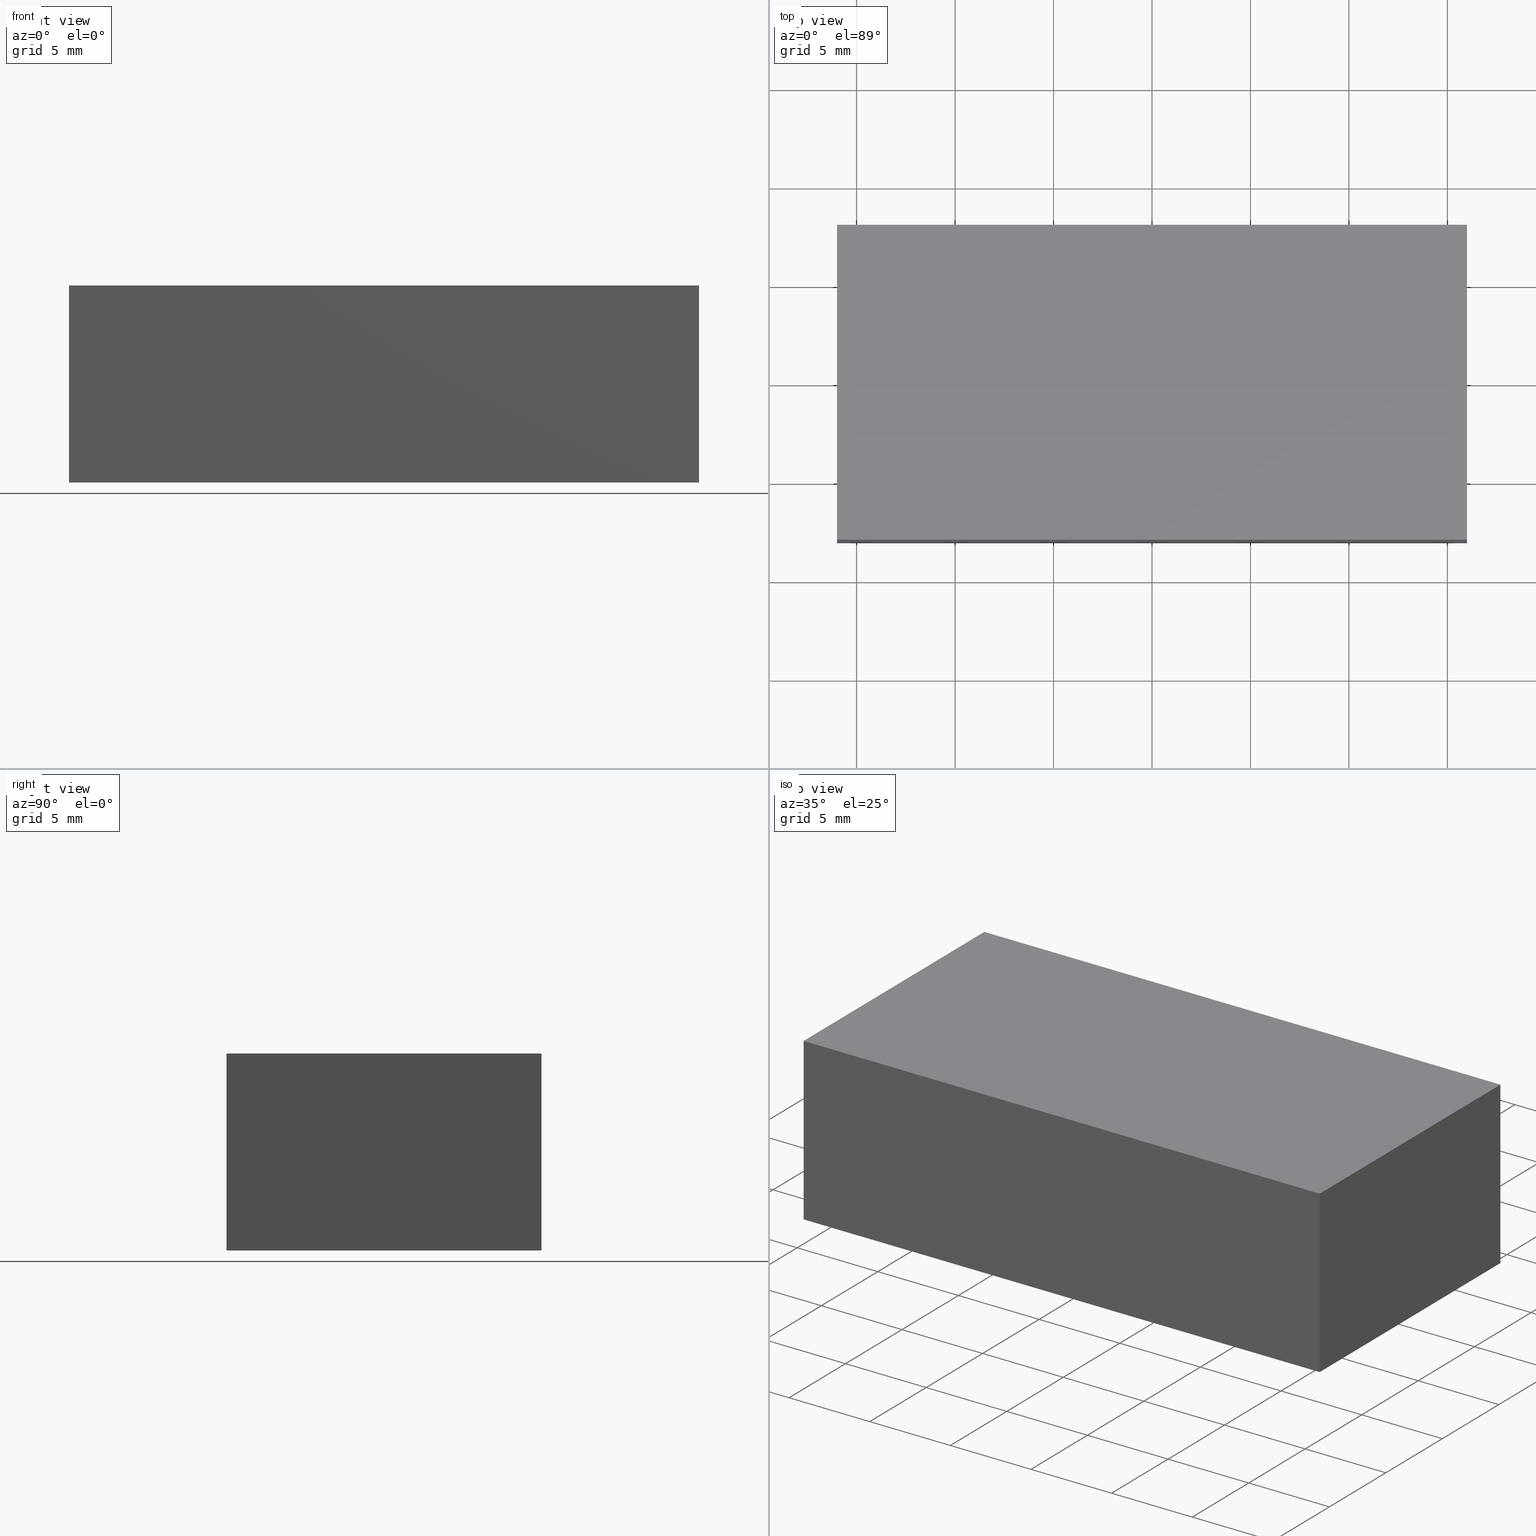
[diagram: canonical four-view strip — front | top / right | iso, engineering-drawing reading convention]
A machine part, canonical four-view strip (front | top / right | iso — engineering-drawing reading convention). The complete STEP part file that produces these views, byte-faithful:
ISO-10303-21;
HEADER;
/* Generated by software containing ST-Developer
 * from STEP Tools, Inc. (www.steptools.com) 
 */

FILE_DESCRIPTION(
/* description */ (''),
/* implementation_level */ '2;1');

FILE_NAME(
/* name */ 
'H:\\Eigene Dateien\\CAD Workspace Vault\\CAD\\E_3_Nocken\\E_3_01_Aufs
chwei\X\DFnocke\\02_Rechteck\\E_3_01_02_00_00_WKZ-0144.stp',
/* time_stamp */ '2024-05-16T12:51:06+02:00',
/* author */ ('dfischer'),
/* organization */ (''),
/* preprocessor_version */ 'ST-DEVELOPER v18.1',
/* originating_system */ 'Autodesk Inventor 2021',
/* authorisation */ '');

FILE_SCHEMA (('AUTOMOTIVE_DESIGN { 1 0 10303 214 3 1 1 }'));
ENDSEC;

DATA;
#10=MECHANICAL_DESIGN_GEOMETRIC_PRESENTATION_REPRESENTATION('',(#14,#15),
#190);
#11=SHAPE_REPRESENTATION_RELATIONSHIP('SRR','None',#197,#12);
#12=ADVANCED_BREP_SHAPE_REPRESENTATION('',(#13),#189);
#13=MANIFOLD_SOLID_BREP('Volumenk\X\F6rper1',#108);
#14=STYLED_ITEM('',(#207),#106);
#15=STYLED_ITEM('',(#206),#13);
#16=FACE_OUTER_BOUND('',#22,.T.);
#17=FACE_OUTER_BOUND('',#23,.T.);
#18=FACE_OUTER_BOUND('',#24,.T.);
#19=FACE_OUTER_BOUND('',#25,.T.);
#20=FACE_OUTER_BOUND('',#26,.T.);
#21=FACE_OUTER_BOUND('',#27,.T.);
#22=EDGE_LOOP('',(#72,#73,#74,#75));
#23=EDGE_LOOP('',(#76,#77,#78,#79));
#24=EDGE_LOOP('',(#80,#81,#82,#83));
#25=EDGE_LOOP('',(#84,#85,#86,#87));
#26=EDGE_LOOP('',(#88,#89,#90,#91));
#27=EDGE_LOOP('',(#92,#93,#94,#95));
#28=LINE('',#164,#40);
#29=LINE('',#166,#41);
#30=LINE('',#168,#42);
#31=LINE('',#169,#43);
#32=LINE('',#173,#44);
#33=LINE('',#174,#45);
#34=LINE('',#175,#46);
#35=LINE('',#178,#47);
#36=LINE('',#179,#48);
#37=LINE('',#182,#49);
#38=LINE('',#183,#50);
#39=LINE('',#185,#51);
#40=VECTOR('',#138,10.);
#41=VECTOR('',#139,10.);
#42=VECTOR('',#140,10.);
#43=VECTOR('',#141,10.);
#44=VECTOR('',#144,10.);
#45=VECTOR('',#145,10.);
#46=VECTOR('',#146,10.);
#47=VECTOR('',#149,10.);
#48=VECTOR('',#150,10.);
#49=VECTOR('',#153,10.);
#50=VECTOR('',#154,10.);
#51=VECTOR('',#157,10.);
#52=VERTEX_POINT('',#162);
#53=VERTEX_POINT('',#163);
#54=VERTEX_POINT('',#165);
#55=VERTEX_POINT('',#167);
#56=VERTEX_POINT('',#171);
#57=VERTEX_POINT('',#172);
#58=VERTEX_POINT('',#177);
#59=VERTEX_POINT('',#181);
#60=EDGE_CURVE('',#52,#53,#28,.T.);
#61=EDGE_CURVE('',#54,#52,#29,.T.);
#62=EDGE_CURVE('',#55,#54,#30,.T.);
#63=EDGE_CURVE('',#53,#55,#31,.T.);
#64=EDGE_CURVE('',#56,#57,#32,.T.);
#65=EDGE_CURVE('',#55,#57,#33,.T.);
#66=EDGE_CURVE('',#56,#54,#34,.T.);
#67=EDGE_CURVE('',#57,#58,#35,.T.);
#68=EDGE_CURVE('',#53,#58,#36,.T.);
#69=EDGE_CURVE('',#58,#59,#37,.T.);
#70=EDGE_CURVE('',#52,#59,#38,.T.);
#71=EDGE_CURVE('',#59,#56,#39,.T.);
#72=ORIENTED_EDGE('',*,*,#60,.F.);
#73=ORIENTED_EDGE('',*,*,#61,.F.);
#74=ORIENTED_EDGE('',*,*,#62,.F.);
#75=ORIENTED_EDGE('',*,*,#63,.F.);
#76=ORIENTED_EDGE('',*,*,#64,.T.);
#77=ORIENTED_EDGE('',*,*,#65,.F.);
#78=ORIENTED_EDGE('',*,*,#62,.T.);
#79=ORIENTED_EDGE('',*,*,#66,.F.);
#80=ORIENTED_EDGE('',*,*,#67,.T.);
#81=ORIENTED_EDGE('',*,*,#68,.F.);
#82=ORIENTED_EDGE('',*,*,#63,.T.);
#83=ORIENTED_EDGE('',*,*,#65,.T.);
#84=ORIENTED_EDGE('',*,*,#69,.T.);
#85=ORIENTED_EDGE('',*,*,#70,.F.);
#86=ORIENTED_EDGE('',*,*,#60,.T.);
#87=ORIENTED_EDGE('',*,*,#68,.T.);
#88=ORIENTED_EDGE('',*,*,#71,.T.);
#89=ORIENTED_EDGE('',*,*,#66,.T.);
#90=ORIENTED_EDGE('',*,*,#61,.T.);
#91=ORIENTED_EDGE('',*,*,#70,.T.);
#92=ORIENTED_EDGE('',*,*,#64,.F.);
#93=ORIENTED_EDGE('',*,*,#71,.F.);
#94=ORIENTED_EDGE('',*,*,#69,.F.);
#95=ORIENTED_EDGE('',*,*,#67,.F.);
#96=PLANE('',#128);
#97=PLANE('',#129);
#98=PLANE('',#130);
#99=PLANE('',#131);
#100=PLANE('',#132);
#101=PLANE('',#133);
#102=ADVANCED_FACE('',(#16),#96,.F.);
#103=ADVANCED_FACE('',(#17),#97,.T.);
#104=ADVANCED_FACE('',(#18),#98,.T.);
#105=ADVANCED_FACE('',(#19),#99,.T.);
#106=ADVANCED_FACE('',(#20),#100,.T.);
#107=ADVANCED_FACE('',(#21),#101,.T.);
#108=CLOSED_SHELL('',(#102,#103,#104,#105,#106,#107));
#109=DERIVED_UNIT_ELEMENT(#111,1.);
#110=DERIVED_UNIT_ELEMENT(#192,3.);
#111=(
MASS_UNIT()
NAMED_UNIT(*)
SI_UNIT($,.GRAM.)
);
#112=DERIVED_UNIT((#109,#110));
#113=MEASURE_REPRESENTATION_ITEM('density measure',
POSITIVE_RATIO_MEASURE(8.03),#112);
#114=PROPERTY_DEFINITION_REPRESENTATION(#119,#116);
#115=PROPERTY_DEFINITION_REPRESENTATION(#120,#117);
#116=REPRESENTATION('material name',(#118),#189);
#117=REPRESENTATION('density',(#113),#189);
#118=DESCRIPTIVE_REPRESENTATION_ITEM('1.4301','1.4301');
#119=PROPERTY_DEFINITION('material property','material name',#199);
#120=PROPERTY_DEFINITION('material property','density of part',#199);
#121=DATE_TIME_ROLE('creation_date');
#122=APPLIED_DATE_AND_TIME_ASSIGNMENT(#123,#121,(#199));
#123=DATE_AND_TIME(#124,#125);
#124=CALENDAR_DATE(2011,18,10);
#125=LOCAL_TIME(0,0,0.,#126);
#126=COORDINATED_UNIVERSAL_TIME_OFFSET(0,0,.BEHIND.);
#127=AXIS2_PLACEMENT_3D('placement',#160,#134,#135);
#128=AXIS2_PLACEMENT_3D('',#161,#136,#137);
#129=AXIS2_PLACEMENT_3D('',#170,#142,#143);
#130=AXIS2_PLACEMENT_3D('',#176,#147,#148);
#131=AXIS2_PLACEMENT_3D('',#180,#151,#152);
#132=AXIS2_PLACEMENT_3D('',#184,#155,#156);
#133=AXIS2_PLACEMENT_3D('',#186,#158,#159);
#134=DIRECTION('axis',(0.,0.,1.));
#135=DIRECTION('refdir',(1.,0.,0.));
#136=DIRECTION('center_axis',(0.,0.,1.));
#137=DIRECTION('ref_axis',(1.,0.,0.));
#138=DIRECTION('',(-2.77555756156289E-16,1.,0.));
#139=DIRECTION('',(1.,0.,0.));
#140=DIRECTION('',(0.,-1.,0.));
#141=DIRECTION('',(-1.,-2.08166817117217E-16,0.));
#142=DIRECTION('center_axis',(-1.,0.,0.));
#143=DIRECTION('ref_axis',(0.,0.,1.));
#144=DIRECTION('',(0.,1.,0.));
#145=DIRECTION('',(0.,0.,1.));
#146=DIRECTION('',(0.,0.,-1.));
#147=DIRECTION('center_axis',(-2.08166817117217E-16,1.,0.));
#148=DIRECTION('ref_axis',(0.,0.,1.));
#149=DIRECTION('',(1.,2.08166817117217E-16,0.));
#150=DIRECTION('',(0.,0.,1.));
#151=DIRECTION('center_axis',(1.,2.77555756156289E-16,0.));
#152=DIRECTION('ref_axis',(0.,0.,-1.));
#153=DIRECTION('',(2.77555756156289E-16,-1.,0.));
#154=DIRECTION('',(0.,0.,1.));
#155=DIRECTION('center_axis',(0.,-1.,0.));
#156=DIRECTION('ref_axis',(0.,0.,-1.));
#157=DIRECTION('',(-1.,0.,0.));
#158=DIRECTION('center_axis',(0.,0.,1.));
#159=DIRECTION('ref_axis',(1.,0.,0.));
#160=CARTESIAN_POINT('',(0.,0.,0.));
#161=CARTESIAN_POINT('Origin',(0.,2.30455385414616E-15,-5.));
#162=CARTESIAN_POINT('',(16.,-8.,-5.));
#163=CARTESIAN_POINT('',(16.,8.00000000000001,-5.));
#164=CARTESIAN_POINT('',(16.,-8.,-5.));
#165=CARTESIAN_POINT('',(-16.,-8.,-5.));
#166=CARTESIAN_POINT('',(-16.,-8.,-5.));
#167=CARTESIAN_POINT('',(-16.,8.,-5.));
#168=CARTESIAN_POINT('',(-16.,8.,-5.));
#169=CARTESIAN_POINT('',(16.,8.00000000000001,-5.));
#170=CARTESIAN_POINT('Origin',(-16.,-8.,0.));
#171=CARTESIAN_POINT('',(-16.,-8.,5.));
#172=CARTESIAN_POINT('',(-16.,8.,5.));
#173=CARTESIAN_POINT('',(-16.,8.,5.));
#174=CARTESIAN_POINT('',(-16.,8.,0.));
#175=CARTESIAN_POINT('',(-16.,-8.,0.));
#176=CARTESIAN_POINT('Origin',(-16.,8.,0.));
#177=CARTESIAN_POINT('',(16.,8.00000000000001,5.));
#178=CARTESIAN_POINT('',(16.,8.00000000000001,5.));
#179=CARTESIAN_POINT('',(16.,8.00000000000001,0.));
#180=CARTESIAN_POINT('Origin',(16.,8.00000000000001,0.));
#181=CARTESIAN_POINT('',(16.,-8.,5.));
#182=CARTESIAN_POINT('',(16.,-8.,5.));
#183=CARTESIAN_POINT('',(16.,-8.,0.));
#184=CARTESIAN_POINT('Origin',(16.,-8.,0.));
#185=CARTESIAN_POINT('',(-16.,-8.,5.));
#186=CARTESIAN_POINT('Origin',(0.,2.25408917120865E-15,5.));
#187=UNCERTAINTY_MEASURE_WITH_UNIT(LENGTH_MEASURE(0.01),#191,
'DISTANCE_ACCURACY_VALUE',
'Maximum model space distance between geometric entities at asserted c
onnectivities');
#188=UNCERTAINTY_MEASURE_WITH_UNIT(LENGTH_MEASURE(0.01),#191,
'DISTANCE_ACCURACY_VALUE',
'Maximum model space distance between geometric entities at asserted c
onnectivities');
#189=(
GEOMETRIC_REPRESENTATION_CONTEXT(3)
GLOBAL_UNCERTAINTY_ASSIGNED_CONTEXT((#187))
GLOBAL_UNIT_ASSIGNED_CONTEXT((#191,#193,#194))
REPRESENTATION_CONTEXT('','3D')
);
#190=(
GEOMETRIC_REPRESENTATION_CONTEXT(3)
GLOBAL_UNCERTAINTY_ASSIGNED_CONTEXT((#188))
GLOBAL_UNIT_ASSIGNED_CONTEXT((#191,#193,#194))
REPRESENTATION_CONTEXT('','3D')
);
#191=(
LENGTH_UNIT()
NAMED_UNIT(*)
SI_UNIT(.MILLI.,.METRE.)
);
#192=(
LENGTH_UNIT()
NAMED_UNIT(*)
SI_UNIT(.CENTI.,.METRE.)
);
#193=(
NAMED_UNIT(*)
PLANE_ANGLE_UNIT()
SI_UNIT($,.RADIAN.)
);
#194=(
NAMED_UNIT(*)
SI_UNIT($,.STERADIAN.)
SOLID_ANGLE_UNIT()
);
#195=SHAPE_DEFINITION_REPRESENTATION(#196,#197);
#196=PRODUCT_DEFINITION_SHAPE('',$,#199);
#197=SHAPE_REPRESENTATION('',(#127),#189);
#198=PRODUCT_DEFINITION_CONTEXT('part definition',#203,'design');
#199=PRODUCT_DEFINITION('WKZ-0144','E_3_01_02_00_00_WKZ-0144',#200,#198);
#200=PRODUCT_DEFINITION_FORMATION('',$,#205);
#201=PRODUCT_RELATED_PRODUCT_CATEGORY('E_3_01_02_00_00_WKZ-0144',
'E_3_01_02_00_00_WKZ-0144',(#205));
#202=APPLICATION_PROTOCOL_DEFINITION('international standard',
'automotive_design',2009,#203);
#203=APPLICATION_CONTEXT(
'Core Data for Automotive Mechanical Design Process');
#204=PRODUCT_CONTEXT('part definition',#203,'mechanical');
#205=PRODUCT('WKZ-0144','E_3_01_02_00_00_WKZ-0144',$,(#204));
#206=PRESENTATION_STYLE_ASSIGNMENT((#208));
#207=PRESENTATION_STYLE_ASSIGNMENT((#209));
#208=SURFACE_STYLE_USAGE(.BOTH.,#212);
#209=SURFACE_STYLE_USAGE(.BOTH.,#213);
#210=SURFACE_STYLE_RENDERING_WITH_PROPERTIES($,#220,(#211));
#211=SURFACE_STYLE_TRANSPARENT(0.);
#212=SURFACE_SIDE_STYLE('',(#214,#210));
#213=SURFACE_SIDE_STYLE('',(#215));
#214=SURFACE_STYLE_FILL_AREA(#216);
#215=SURFACE_STYLE_FILL_AREA(#217);
#216=FILL_AREA_STYLE('',(#218));
#217=FILL_AREA_STYLE('',(#219));
#218=FILL_AREA_STYLE_COLOUR('',#220);
#219=FILL_AREA_STYLE_COLOUR('',#221);
#220=COLOUR_RGB('',0.92156862745098,0.92156862745098,0.92156862745098);
#221=COLOUR_RGB('',0.16078431372549,0.16078431372549,0.16078431372549);
ENDSEC;
END-ISO-10303-21;
